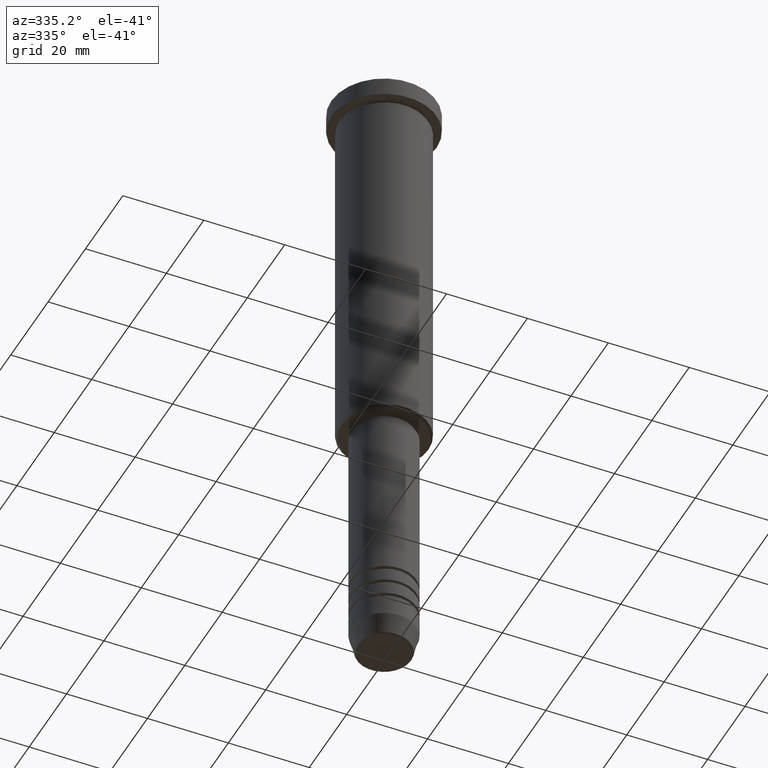
[diagram: clean part render]
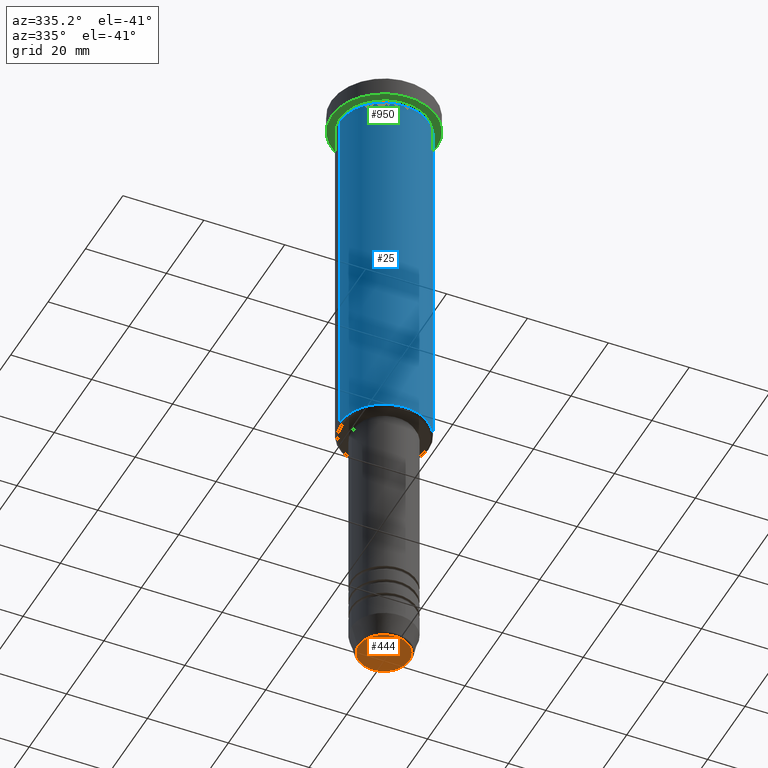
[diagram: same view with three faces highlighted in distinct colors, each labeled with its STEP entity id]
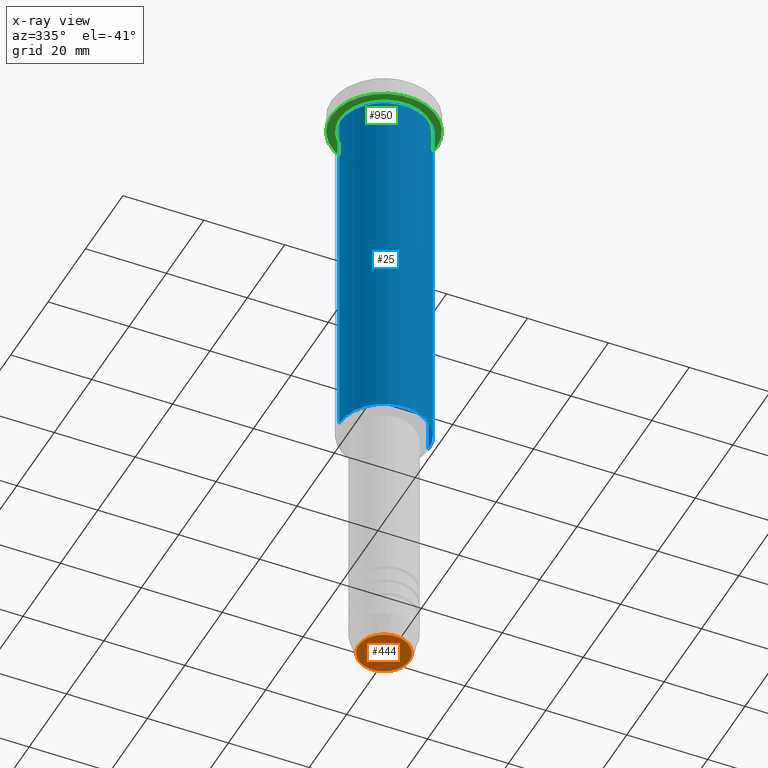
[diagram: x-ray of the same camera — body ghosted, the three highlighted faces saturated]
A machine part, auxiliary view with three faces highlighted in distinct colors.
The next image is the same camera in x-ray (body ghosted, the three faces saturated) — at least one of them is partly hidden behind the body in this view.
Their STEP definitions:

[orange] entity #444 — the highlighted planar face has unit normal (0, -0, 1).
#1 = CIRCLE ( 'NONE', #529, 6.276590543854903892 ) ;
#78 = VERTEX_POINT ( 'NONE', #1142 ) ;
#86 = ORIENTED_EDGE ( 'NONE', *, *, #823, .T. ) ;
#110 = CARTESIAN_POINT ( 'NONE',  ( 0.000000000000000000, 0.000000000000000000, -160.0000000000000284 ) ) ;
#121 = ORIENTED_EDGE ( 'NONE', *, *, #871, .T. ) ;
#282 = DIRECTION ( 'NONE',  ( 1.000000000000000000, 0.000000000000000000, 0.000000000000000000 ) ) ;
#327 = DIRECTION ( 'NONE',  ( 1.000000000000000000, 0.000000000000000000, 0.000000000000000000 ) ) ;
#328 = AXIS2_PLACEMENT_3D ( 'NONE', #110, #1121, #282 ) ;
#331 = VERTEX_POINT ( 'NONE', #884 ) ;
#360 = CARTESIAN_POINT ( 'NONE',  ( 0.000000000000000000, 0.000000000000000000, -160.0000000000000284 ) ) ;
#444 = ADVANCED_FACE ( 'NONE', ( #657 ), #1180, .F. ) ;
#505 = CIRCLE ( 'NONE', #328, 6.276590543854903892 ) ;
#529 = AXIS2_PLACEMENT_3D ( 'NONE', #1147, #681, #327 ) ;
#592 = AXIS2_PLACEMENT_3D ( 'NONE', #360, #886, #716 ) ;
#657 = FACE_OUTER_BOUND ( 'NONE', #914, .T. ) ;
#681 = DIRECTION ( 'NONE',  ( 0.000000000000000000, 0.000000000000000000, -1.000000000000000000 ) ) ;
#716 = DIRECTION ( 'NONE',  ( 1.000000000000000000, 0.000000000000000000, 0.000000000000000000 ) ) ;
#823 = EDGE_CURVE ( 'NONE', #331, #78, #505, .T. ) ;
#871 = EDGE_CURVE ( 'NONE', #78, #331, #1, .T. ) ;
#884 = CARTESIAN_POINT ( 'NONE',  ( 6.276590543854903892, 0.000000000000000000, -160.0000000000000284 ) ) ;
#886 = DIRECTION ( 'NONE',  ( 0.000000000000000000, -0.000000000000000000, 1.000000000000000000 ) ) ;
#914 = EDGE_LOOP ( 'NONE', ( #86, #121 ) ) ;
#1121 = DIRECTION ( 'NONE',  ( 0.000000000000000000, 0.000000000000000000, -1.000000000000000000 ) ) ;
#1142 = CARTESIAN_POINT ( 'NONE',  ( -6.276590543854903892, 7.982336011935122327E-16, -160.0000000000000284 ) ) ;
#1147 = CARTESIAN_POINT ( 'NONE',  ( 0.000000000000000000, 0.000000000000000000, -160.0000000000000284 ) ) ;
#1180 = PLANE ( 'NONE',  #592 ) ;

[blue] entity #25 — the highlighted cylindrical surface (partial cylindrical patch) has radius 11 mm, axis along (-0, -0, 1).
#3 = AXIS2_PLACEMENT_3D ( 'NONE', #828, #933, #405 ) ;
#25 = ADVANCED_FACE ( 'NONE', ( #937 ), #638, .T. ) ;
#51 = CARTESIAN_POINT ( 'NONE',  ( 0.000000000000000000, 0.000000000000000000, -95.50000000000001421 ) ) ;
#106 = EDGE_LOOP ( 'NONE', ( #373, #432, #688, #908 ) ) ;
#120 = CARTESIAN_POINT ( 'NONE',  ( 0.000000000000000000, 0.000000000000000000, -5.999999999999999112 ) ) ;
#135 = VERTEX_POINT ( 'NONE', #544 ) ;
#241 = EDGE_CURVE ( 'NONE', #135, #812, #1031, .T. ) ;
#336 = CARTESIAN_POINT ( 'NONE',  ( -11.00000000000000000, 1.347111479062088405E-15, -5.999999999999999112 ) ) ;
#359 = CARTESIAN_POINT ( 'NONE',  ( -11.00000000000000000, 1.347111479062088405E-15, 0.000000000000000000 ) ) ;
#369 = DIRECTION ( 'NONE',  ( -0.000000000000000000, -0.000000000000000000, 1.000000000000000000 ) ) ;
#373 = ORIENTED_EDGE ( 'NONE', *, *, #731, .F. ) ;
#405 = DIRECTION ( 'NONE',  ( 1.000000000000000000, 0.000000000000000000, 0.000000000000000000 ) ) ;
#420 = DIRECTION ( 'NONE',  ( -1.000000000000000000, 0.000000000000000000, 0.000000000000000000 ) ) ;
#432 = ORIENTED_EDGE ( 'NONE', *, *, #241, .T. ) ;
#460 = LINE ( 'NONE', #1114, #506 ) ;
#506 = VECTOR ( 'NONE', #369, 1000.000000000000000 ) ;
#507 = AXIS2_PLACEMENT_3D ( 'NONE', #51, #617, #420 ) ;
#544 = CARTESIAN_POINT ( 'NONE',  ( -11.00000000000000000, 1.347111479062088405E-15, -95.50000000000001421 ) ) ;
#558 = VERTEX_POINT ( 'NONE', #336 ) ;
#581 = DIRECTION ( 'NONE',  ( 1.000000000000000000, 0.000000000000000000, 0.000000000000000000 ) ) ;
#597 = VERTEX_POINT ( 'NONE', #955 ) ;
#617 = DIRECTION ( 'NONE',  ( -0.000000000000000000, -0.000000000000000000, 1.000000000000000000 ) ) ;
#624 = DIRECTION ( 'NONE',  ( -0.000000000000000000, -0.000000000000000000, 1.000000000000000000 ) ) ;
#638 = CYLINDRICAL_SURFACE ( 'NONE', #3, 11.00000000000000000 ) ;
#663 = VECTOR ( 'NONE', #624, 1000.000000000000000 ) ;
#688 = ORIENTED_EDGE ( 'NONE', *, *, #1174, .T. ) ;
#731 = EDGE_CURVE ( 'NONE', #135, #558, #1171, .T. ) ;
#752 = DIRECTION ( 'NONE',  ( -0.000000000000000000, -0.000000000000000000, 1.000000000000000000 ) ) ;
#812 = VERTEX_POINT ( 'NONE', #1007 ) ;
#828 = CARTESIAN_POINT ( 'NONE',  ( 0.000000000000000000, 0.000000000000000000, 0.000000000000000000 ) ) ;
#889 = EDGE_CURVE ( 'NONE', #558, #597, #942, .T. ) ;
#908 = ORIENTED_EDGE ( 'NONE', *, *, #889, .F. ) ;
#933 = DIRECTION ( 'NONE',  ( -0.000000000000000000, -0.000000000000000000, 1.000000000000000000 ) ) ;
#937 = FACE_OUTER_BOUND ( 'NONE', #106, .T. ) ;
#942 = CIRCLE ( 'NONE', #1144, 11.00000000000000000 ) ;
#955 = CARTESIAN_POINT ( 'NONE',  ( 11.00000000000000000, 0.000000000000000000, -5.999999999999999112 ) ) ;
#1007 = CARTESIAN_POINT ( 'NONE',  ( 11.00000000000000000, 0.000000000000000000, -95.50000000000001421 ) ) ;
#1031 = CIRCLE ( 'NONE', #507, 11.00000000000000000 ) ;
#1114 = CARTESIAN_POINT ( 'NONE',  ( 11.00000000000000000, 0.000000000000000000, 0.000000000000000000 ) ) ;
#1144 = AXIS2_PLACEMENT_3D ( 'NONE', #120, #752, #581 ) ;
#1171 = LINE ( 'NONE', #359, #663 ) ;
#1174 = EDGE_CURVE ( 'NONE', #812, #597, #460, .T. ) ;

[green] entity #950 — the highlighted planar face has unit normal (0, 0, -1).
#14 = CIRCLE ( 'NONE', #608, 11.00000000000000000 ) ;
#24 = FACE_OUTER_BOUND ( 'NONE', #919, .T. ) ;
#69 = DIRECTION ( 'NONE',  ( -0.000000000000000000, -0.000000000000000000, 1.000000000000000000 ) ) ;
#92 = CARTESIAN_POINT ( 'NONE',  ( 11.00000000000000000, 1.347111479062088405E-15, -4.999999999999999112 ) ) ;
#129 = AXIS2_PLACEMENT_3D ( 'NONE', #218, #665, #143 ) ;
#140 = VERTEX_POINT ( 'NONE', #92 ) ;
#143 = DIRECTION ( 'NONE',  ( -1.000000000000000000, 0.000000000000000000, -0.000000000000000000 ) ) ;
#161 = ORIENTED_EDGE ( 'NONE', *, *, #640, .T. ) ;
#163 = CARTESIAN_POINT ( 'NONE',  ( 0.000000000000000000, 0.000000000000000000, -5.000000000000000000 ) ) ;
#169 = DIRECTION ( 'NONE',  ( 1.000000000000000000, 0.000000000000000000, 0.000000000000000000 ) ) ;
#218 = CARTESIAN_POINT ( 'NONE',  ( 0.000000000000000000, 13.00000000000000000, -5.000000000000000000 ) ) ;
#246 = ORIENTED_EDGE ( 'NONE', *, *, #1041, .T. ) ;
#247 = CARTESIAN_POINT ( 'NONE',  ( 0.000000000000000000, 0.000000000000000000, -5.000000000000000000 ) ) ;
#290 = ORIENTED_EDGE ( 'NONE', *, *, #1123, .F. ) ;
#396 = VERTEX_POINT ( 'NONE', #784 ) ;
#412 = CARTESIAN_POINT ( 'NONE',  ( 0.000000000000000000, 0.000000000000000000, -5.000000000000000000 ) ) ;
#427 = CARTESIAN_POINT ( 'NONE',  ( 0.000000000000000000, 0.000000000000000000, -5.000000000000000000 ) ) ;
#481 = ORIENTED_EDGE ( 'NONE', *, *, #978, .F. ) ;
#486 = AXIS2_PLACEMENT_3D ( 'NONE', #163, #696, #169 ) ;
#513 = CARTESIAN_POINT ( 'NONE',  ( 13.00000000000000000, 0.000000000000000000, -5.000000000000000000 ) ) ;
#573 = DIRECTION ( 'NONE',  ( -0.000000000000000000, -0.000000000000000000, 1.000000000000000000 ) ) ;
#608 = AXIS2_PLACEMENT_3D ( 'NONE', #247, #1072, #981 ) ;
#637 = EDGE_LOOP ( 'NONE', ( #161, #246 ) ) ;
#640 = EDGE_CURVE ( 'NONE', #396, #140, #773, .T. ) ;
#665 = DIRECTION ( 'NONE',  ( 0.000000000000000000, 0.000000000000000000, -1.000000000000000000 ) ) ;
#673 = FACE_BOUND ( 'NONE', #637, .T. ) ;
#696 = DIRECTION ( 'NONE',  ( -0.000000000000000000, -0.000000000000000000, 1.000000000000000000 ) ) ;
#710 = DIRECTION ( 'NONE',  ( -1.000000000000000000, 0.000000000000000000, 0.000000000000000000 ) ) ;
#773 = CIRCLE ( 'NONE', #816, 11.00000000000000000 ) ;
#784 = CARTESIAN_POINT ( 'NONE',  ( -11.00000000000000000, 0.000000000000000000, -4.999999999999999112 ) ) ;
#794 = CARTESIAN_POINT ( 'NONE',  ( -13.00000000000000000, 1.592040838891559095E-15, -5.000000000000000000 ) ) ;
#816 = AXIS2_PLACEMENT_3D ( 'NONE', #427, #69, #710 ) ;
#853 = PLANE ( 'NONE',  #129 ) ;
#919 = EDGE_LOOP ( 'NONE', ( #481, #290 ) ) ;
#927 = CIRCLE ( 'NONE', #486, 13.00000000000000000 ) ;
#950 = ADVANCED_FACE ( 'NONE', ( #673, #24 ), #853, .T. ) ;
#959 = DIRECTION ( 'NONE',  ( 1.000000000000000000, 0.000000000000000000, 0.000000000000000000 ) ) ;
#978 = EDGE_CURVE ( 'NONE', #1088, #1079, #998, .T. ) ;
#981 = DIRECTION ( 'NONE',  ( -1.000000000000000000, 0.000000000000000000, 0.000000000000000000 ) ) ;
#998 = CIRCLE ( 'NONE', #1073, 13.00000000000000000 ) ;
#1041 = EDGE_CURVE ( 'NONE', #140, #396, #14, .T. ) ;
#1072 = DIRECTION ( 'NONE',  ( -0.000000000000000000, -0.000000000000000000, 1.000000000000000000 ) ) ;
#1073 = AXIS2_PLACEMENT_3D ( 'NONE', #412, #573, #959 ) ;
#1079 = VERTEX_POINT ( 'NONE', #794 ) ;
#1088 = VERTEX_POINT ( 'NONE', #513 ) ;
#1123 = EDGE_CURVE ( 'NONE', #1079, #1088, #927, .T. ) ;